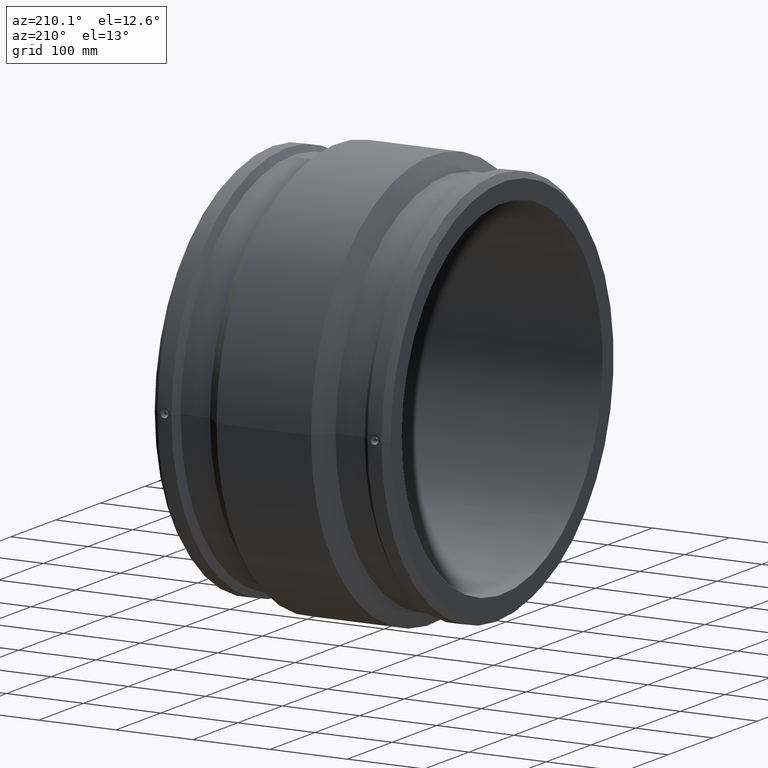
[diagram: clean part render]
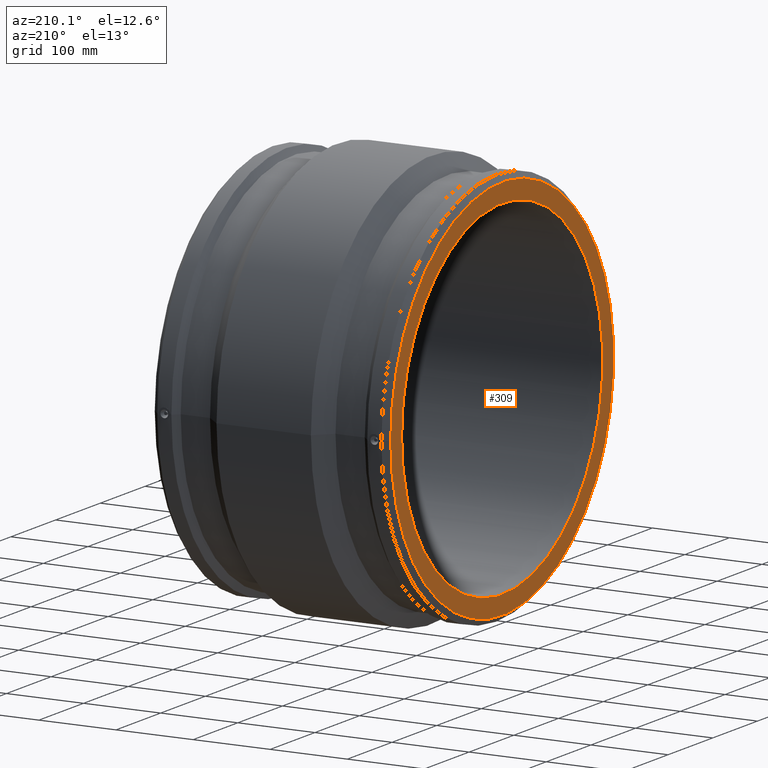
[diagram: same view with one face highlighted and labeled with its STEP entity id]
A machine part, auxiliary view. The second image highlights one B-rep face of the part: STEP entity #309.
In plain terms, the highlighted planar face has unit normal (-1, -0, 0).
Its self-contained STEP definition (entity closure, byte-faithful):
#37=FACE_BOUND('',#120,.T.);
#79=FACE_OUTER_BOUND('',#119,.T.);
#119=EDGE_LOOP('',(#261));
#120=EDGE_LOOP('',(#262));
#159=CIRCLE('',#356,249.29);
#160=CIRCLE('',#357,225.);
#185=VERTEX_POINT('',#611);
#186=VERTEX_POINT('',#613);
#215=EDGE_CURVE('',#185,#185,#159,.T.);
#216=EDGE_CURVE('',#186,#186,#160,.T.);
#261=ORIENTED_EDGE('',*,*,#215,.F.);
#262=ORIENTED_EDGE('',*,*,#216,.T.);
#291=PLANE('',#355);
#309=ADVANCED_FACE('',(#79,#37),#291,.T.);
#355=AXIS2_PLACEMENT_3D('',#610,#443,#444);
#356=AXIS2_PLACEMENT_3D('',#612,#445,#446);
#357=AXIS2_PLACEMENT_3D('',#614,#447,#448);
#443=DIRECTION('center_axis',(-1.,-1.83697019872103E-16,0.));
#444=DIRECTION('ref_axis',(0.,0.,1.));
#445=DIRECTION('center_axis',(1.,1.83697019872103E-16,0.));
#446=DIRECTION('ref_axis',(0.,0.,-1.));
#447=DIRECTION('center_axis',(1.,1.83697019872103E-16,0.));
#448=DIRECTION('ref_axis',(0.,0.,-1.));
#610=CARTESIAN_POINT('Origin',(-153.,249.29,0.));
#611=CARTESIAN_POINT('',(-153.,249.29,0.));
#612=CARTESIAN_POINT('Origin',(-153.,9.86076131526265E-30,0.));
#613=CARTESIAN_POINT('',(-153.,225.,0.));
#614=CARTESIAN_POINT('Origin',(-153.,9.86076131526265E-30,0.));